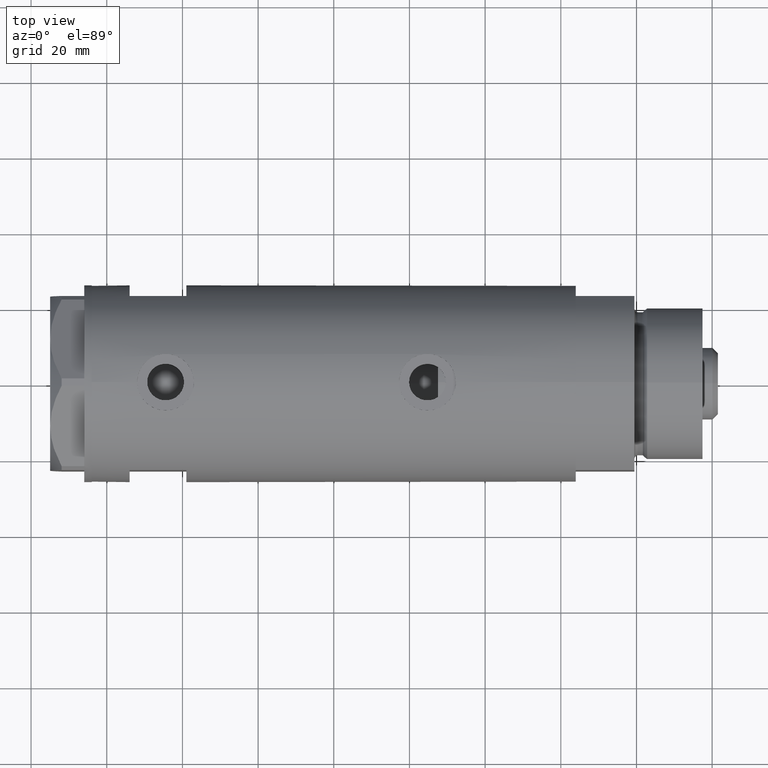
[diagram: clean part render]
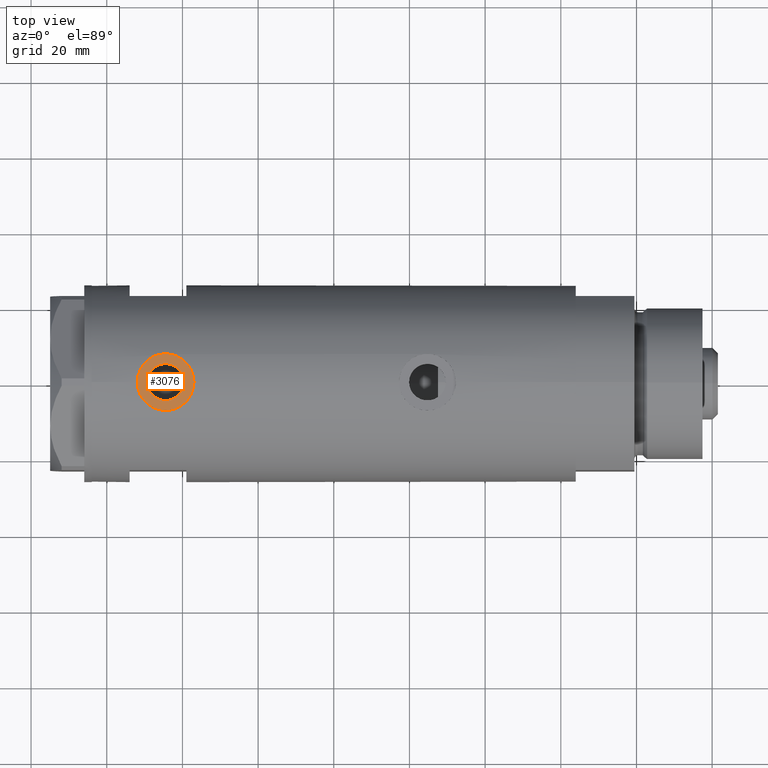
[diagram: same view with one face highlighted and labeled with its STEP entity id]
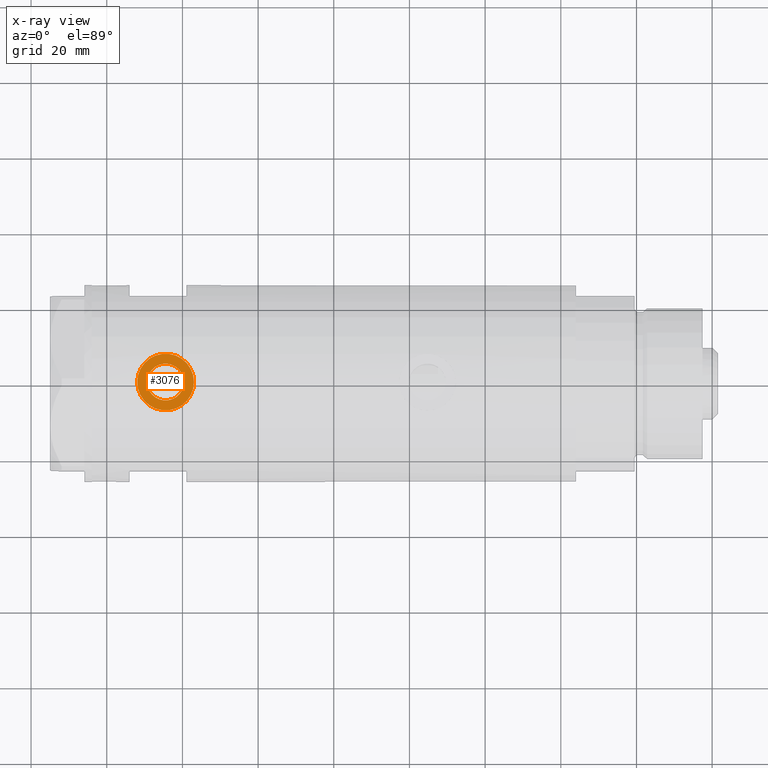
[diagram: x-ray of the same camera — body ghosted, the highlighted face saturated]
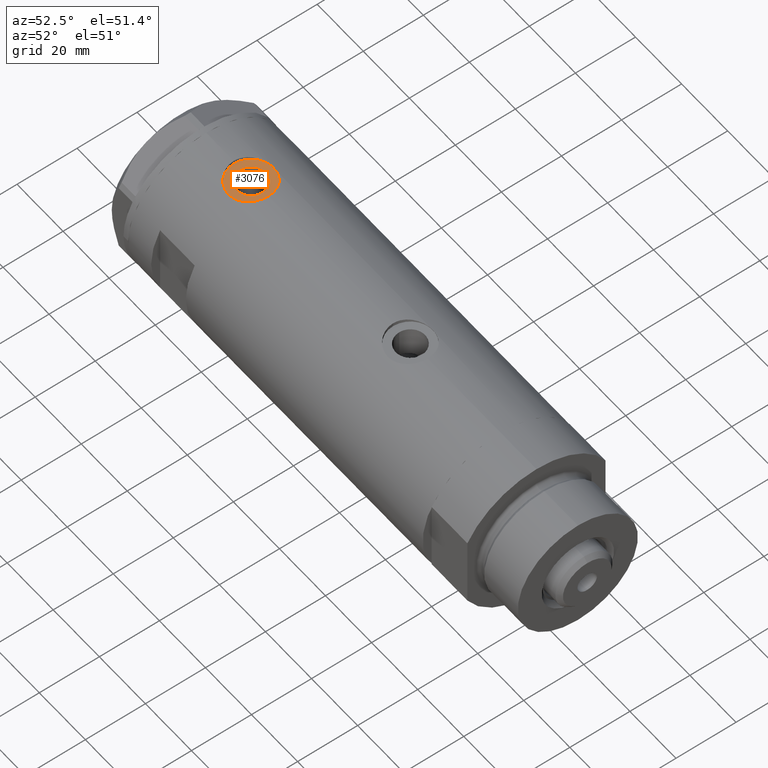
[diagram: same view with one face highlighted and labeled with its STEP entity id]
A machine part, top view. The second image highlights one B-rep face of the part: STEP entity #3076.
The next image is the same camera in x-ray: the body ghosted, the highlighted face saturated — about 0% of this face is hidden behind the body in this view.
A second angle (auxiliary view) of the same face is appended — the face is thin or edge-on in the first view.
In plain terms, the highlighted planar face has unit normal (0, 0, 1).
Its self-contained STEP definition (entity closure, byte-faithful):
#186 = CARTESIAN_POINT ( 'NONE',  ( 24.80000000000000426, 0.000000000000000000, 44.45000000000000284 ) ) ;
#324 = AXIS2_PLACEMENT_3D ( 'NONE', #2912, #4521, #4949 ) ;
#397 = CARTESIAN_POINT ( 'NONE',  ( 24.80000000000000426, 0.000000000000000000, 36.95000000000000284 ) ) ;
#487 = VERTEX_POINT ( 'NONE', #3560 ) ;
#547 = DIRECTION ( 'NONE',  ( 0.000000000000000000, 0.000000000000000000, -1.000000000000000000 ) ) ;
#550 = DIRECTION ( 'NONE',  ( 1.000000000000000000, 0.000000000000000000, 0.000000000000000000 ) ) ;
#601 = DIRECTION ( 'NONE',  ( 1.000000000000000000, 0.000000000000000000, 0.000000000000000000 ) ) ;
#604 = FACE_BOUND ( 'NONE', #3550, .T. ) ;
#653 = DIRECTION ( 'NONE',  ( 1.000000000000000000, 0.000000000000000000, 0.000000000000000000 ) ) ;
#802 = AXIS2_PLACEMENT_3D ( 'NONE', #2579, #550, #3768 ) ;
#1012 = CIRCLE ( 'NONE', #3880, 7.500000000000000000 ) ;
#1166 = CARTESIAN_POINT ( 'NONE',  ( 24.80000000000000426, 5.957906677851871624E-16, 49.31500000000000483 ) ) ;
#1274 = DIRECTION ( 'NONE',  ( 1.000000000000000000, 0.000000000000000000, 0.000000000000000000 ) ) ;
#1314 = AXIS2_PLACEMENT_3D ( 'NONE', #2512, #601, #2603 ) ;
#1906 = EDGE_CURVE ( 'NONE', #4296, #4849, #1012, .T. ) ;
#2059 = ORIENTED_EDGE ( 'NONE', *, *, #1906, .T. ) ;
#2137 = VERTEX_POINT ( 'NONE', #1166 ) ;
#2254 = CARTESIAN_POINT ( 'NONE',  ( 24.80000000000000426, 0.000000000000000000, 44.45000000000000284 ) ) ;
#2512 = CARTESIAN_POINT ( 'NONE',  ( 24.80000000000000426, 0.000000000000000000, 44.45000000000000284 ) ) ;
#2579 = CARTESIAN_POINT ( 'NONE',  ( 24.80000000000000426, 0.000000000000000000, 44.45000000000000284 ) ) ;
#2603 = DIRECTION ( 'NONE',  ( 0.000000000000000000, 0.000000000000000000, -1.000000000000000000 ) ) ;
#2608 = PLANE ( 'NONE',  #802 ) ;
#2705 = DIRECTION ( 'NONE',  ( 0.000000000000000000, 0.000000000000000000, -1.000000000000000000 ) ) ;
#2814 = CIRCLE ( 'NONE', #3838, 4.865000000000001101 ) ;
#2821 = EDGE_CURVE ( 'NONE', #2137, #487, #2814, .T. ) ;
#2912 = CARTESIAN_POINT ( 'NONE',  ( 24.80000000000000426, 0.000000000000000000, 44.45000000000000284 ) ) ;
#3005 = FACE_OUTER_BOUND ( 'NONE', #4379, .T. ) ;
#3076 = ADVANCED_FACE ( 'NONE', ( #604, #3005 ), #2608, .T. ) ;
#3550 = EDGE_LOOP ( 'NONE', ( #3568, #4666 ) ) ;
#3560 = CARTESIAN_POINT ( 'NONE',  ( 24.80000000000000426, 0.000000000000000000, 39.58500000000000085 ) ) ;
#3568 = ORIENTED_EDGE ( 'NONE', *, *, #4713, .F. ) ;
#3768 = DIRECTION ( 'NONE',  ( 0.000000000000000000, 0.000000000000000000, -1.000000000000000000 ) ) ;
#3770 = CIRCLE ( 'NONE', #324, 7.500000000000000000 ) ;
#3838 = AXIS2_PLACEMENT_3D ( 'NONE', #186, #1274, #547 ) ;
#3880 = AXIS2_PLACEMENT_3D ( 'NONE', #2254, #653, #2705 ) ;
#4141 = CARTESIAN_POINT ( 'NONE',  ( 24.80000000000000426, 9.184850993605147944E-16, 51.95000000000000284 ) ) ;
#4296 = VERTEX_POINT ( 'NONE', #397 ) ;
#4379 = EDGE_LOOP ( 'NONE', ( #2059, #4648 ) ) ;
#4521 = DIRECTION ( 'NONE',  ( 1.000000000000000000, 0.000000000000000000, 0.000000000000000000 ) ) ;
#4602 = CIRCLE ( 'NONE', #1314, 4.865000000000001101 ) ;
#4648 = ORIENTED_EDGE ( 'NONE', *, *, #4834, .T. ) ;
#4666 = ORIENTED_EDGE ( 'NONE', *, *, #2821, .F. ) ;
#4713 = EDGE_CURVE ( 'NONE', #487, #2137, #4602, .T. ) ;
#4834 = EDGE_CURVE ( 'NONE', #4849, #4296, #3770, .T. ) ;
#4849 = VERTEX_POINT ( 'NONE', #4141 ) ;
#4949 = DIRECTION ( 'NONE',  ( 0.000000000000000000, 0.000000000000000000, -1.000000000000000000 ) ) ;